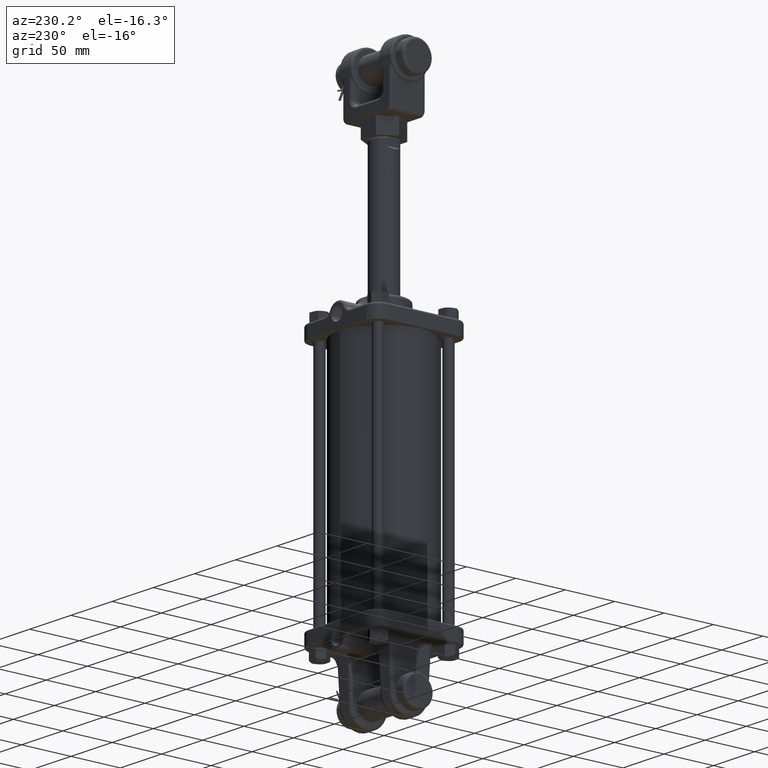
[diagram: clean part render]
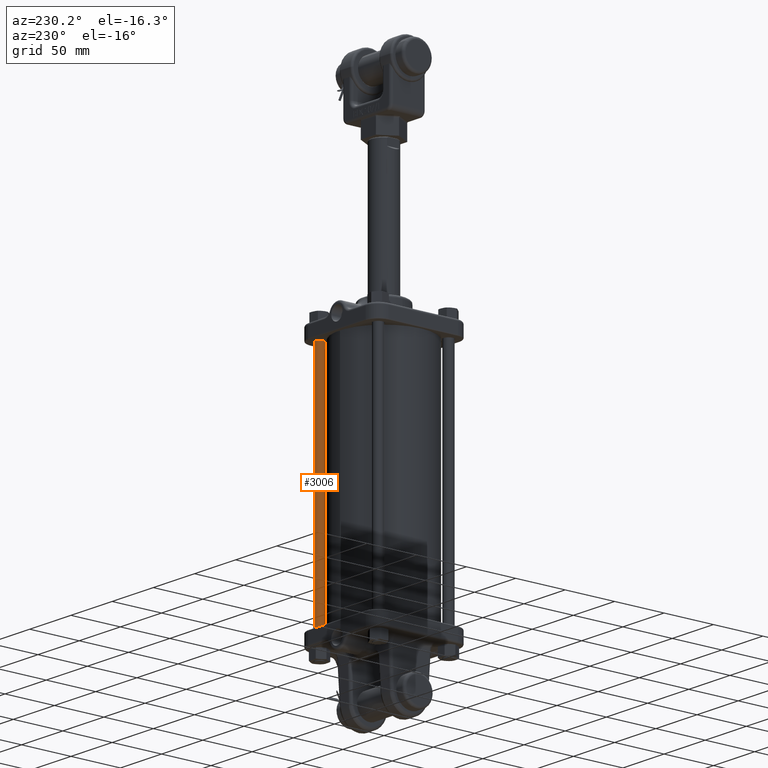
[diagram: same view with one face highlighted and labeled with its STEP entity id]
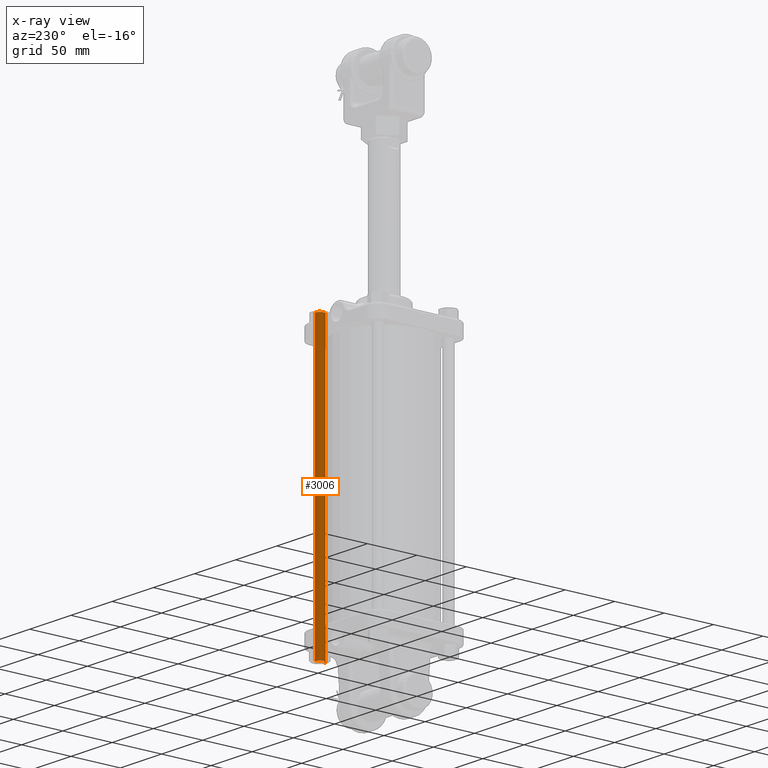
[diagram: x-ray of the same camera — body ghosted, the highlighted face saturated]
A machine part, auxiliary view. The second image highlights one B-rep face of the part: STEP entity #3006.
The next image is the same camera in x-ray: the body ghosted, the highlighted face saturated — about 0% of this face is hidden behind the body in this view.
In plain terms, the highlighted cylindrical surface (edge-blend (fillet) strip) has radius 4.7625 mm, axis along (-0, -0, 1).
Its self-contained STEP definition (entity closure, byte-faithful):
#465 = ORIENTED_EDGE ( 'NONE', *, *, #12347, .T. ) ;
#2398 = DIRECTION ( 'NONE',  ( 1.000000000000000000, 0.000000000000000000, 0.000000000000000000 ) ) ;
#2484 = AXIS2_PLACEMENT_3D ( 'NONE', #24425, #31567, #17934 ) ;
#3006 = ADVANCED_FACE ( 'NONE', ( #30322 ), #34016, .T. ) ;
#3085 = LINE ( 'NONE', #24557, #3311 ) ;
#3311 = VECTOR ( 'NONE', #6551, 39.37007874015748143 ) ;
#4293 = VERTEX_POINT ( 'NONE', #9995 ) ;
#5199 = EDGE_CURVE ( 'NONE', #4293, #44590, #3085, .T. ) ;
#6165 = CIRCLE ( 'NONE', #2484, 0.1875000000000001110 ) ;
#6359 = ORIENTED_EDGE ( 'NONE', *, *, #21102, .T. ) ;
#6551 = DIRECTION ( 'NONE',  ( -9.999999999999998558E-17, 0.000000000000000000, 1.000000000000000000 ) ) ;
#8822 = CARTESIAN_POINT ( 'NONE',  ( 1.192499999999998117, 1.379999999999976579, 0.3866666666666525032 ) ) ;
#9489 = ORIENTED_EDGE ( 'NONE', *, *, #5199, .F. ) ;
#9650 = DIRECTION ( 'NONE',  ( -9.999999999999998558E-17, 0.000000000000000000, 1.000000000000000000 ) ) ;
#9995 = CARTESIAN_POINT ( 'NONE',  ( 1.192499999999999227, 1.379999999999976579, -10.73333333333334316 ) ) ;
#10143 = DIRECTION ( 'NONE',  ( 1.000000000000000000, 0.000000000000000000, 0.000000000000000000 ) ) ;
#12347 = EDGE_CURVE ( 'NONE', #16816, #35028, #27195, .T. ) ;
#14296 = ORIENTED_EDGE ( 'NONE', *, *, #23709, .F. ) ;
#16816 = VERTEX_POINT ( 'NONE', #31479 ) ;
#17030 = CARTESIAN_POINT ( 'NONE',  ( 1.567499999999998339, 1.379999999999976579, 1.374999999999999334 ) ) ;
#17934 = DIRECTION ( 'NONE',  ( 1.000000000000000000, 0.000000000000000000, 0.000000000000000000 ) ) ;
#21102 = EDGE_CURVE ( 'NONE', #35028, #44590, #39206, .T. ) ;
#23408 = AXIS2_PLACEMENT_3D ( 'NONE', #31015, #37712, #2398 ) ;
#23709 = EDGE_CURVE ( 'NONE', #16816, #4293, #6165, .T. ) ;
#24425 = CARTESIAN_POINT ( 'NONE',  ( 1.379999999999999227, 1.379999999999976579, -10.73333333333334316 ) ) ;
#24497 = AXIS2_PLACEMENT_3D ( 'NONE', #34602, #44532, #10143 ) ;
#24557 = CARTESIAN_POINT ( 'NONE',  ( 1.192499999999998117, 1.379999999999976579, 1.374999999999999334 ) ) ;
#27195 = LINE ( 'NONE', #17030, #37005 ) ;
#30322 = FACE_OUTER_BOUND ( 'NONE', #39184, .T. ) ;
#31015 = CARTESIAN_POINT ( 'NONE',  ( 1.379999999999998117, 1.379999999999976579, 1.374999999999999334 ) ) ;
#31479 = CARTESIAN_POINT ( 'NONE',  ( 1.567499999999999227, 1.379999999999976579, -10.73333333333334316 ) ) ;
#31567 = DIRECTION ( 'NONE',  ( 1.041488005239604349E-16, -9.991390020518845876E-17, -1.000000000000000000 ) ) ;
#34016 = CYLINDRICAL_SURFACE ( 'NONE', #23408, 0.1875000000000001110 ) ;
#34602 = CARTESIAN_POINT ( 'NONE',  ( 1.379999999999998117, 1.379999999999976579, 0.3866666666666525032 ) ) ;
#35028 = VERTEX_POINT ( 'NONE', #45258 ) ;
#37005 = VECTOR ( 'NONE', #9650, 39.37007874015748143 ) ;
#37712 = DIRECTION ( 'NONE',  ( -9.999999999999999791E-17, 0.000000000000000000, 1.000000000000000000 ) ) ;
#39184 = EDGE_LOOP ( 'NONE', ( #9489, #14296, #465, #6359 ) ) ;
#39206 = CIRCLE ( 'NONE', #24497, 0.1875000000000001110 ) ;
#44532 = DIRECTION ( 'NONE',  ( -0.000000000000000000, -0.000000000000000000, -1.000000000000000000 ) ) ;
#44590 = VERTEX_POINT ( 'NONE', #8822 ) ;
#45258 = CARTESIAN_POINT ( 'NONE',  ( 1.567499999999998339, 1.379999999999976579, 0.3866666666666525032 ) ) ;